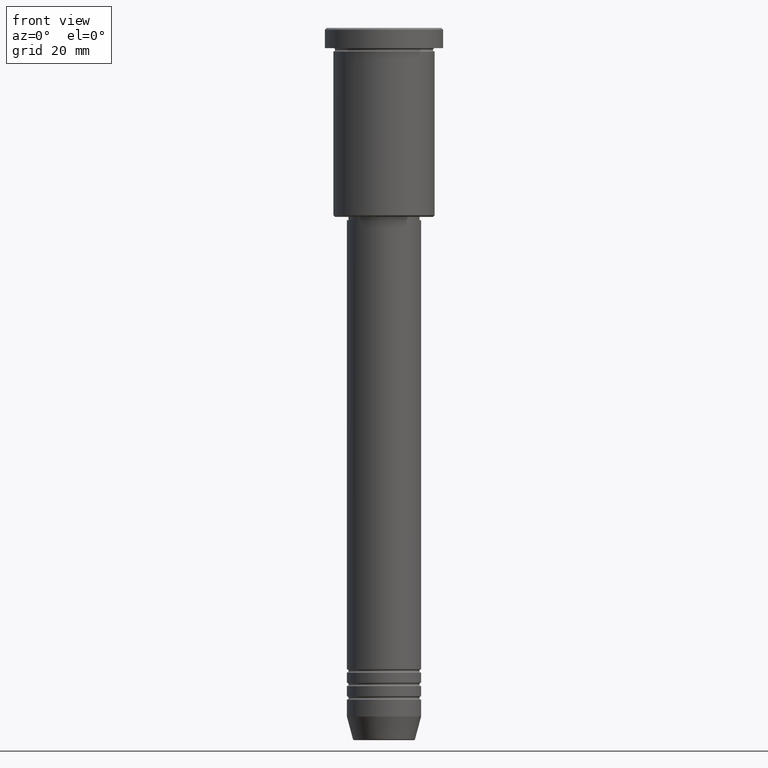
[diagram: clean part render]
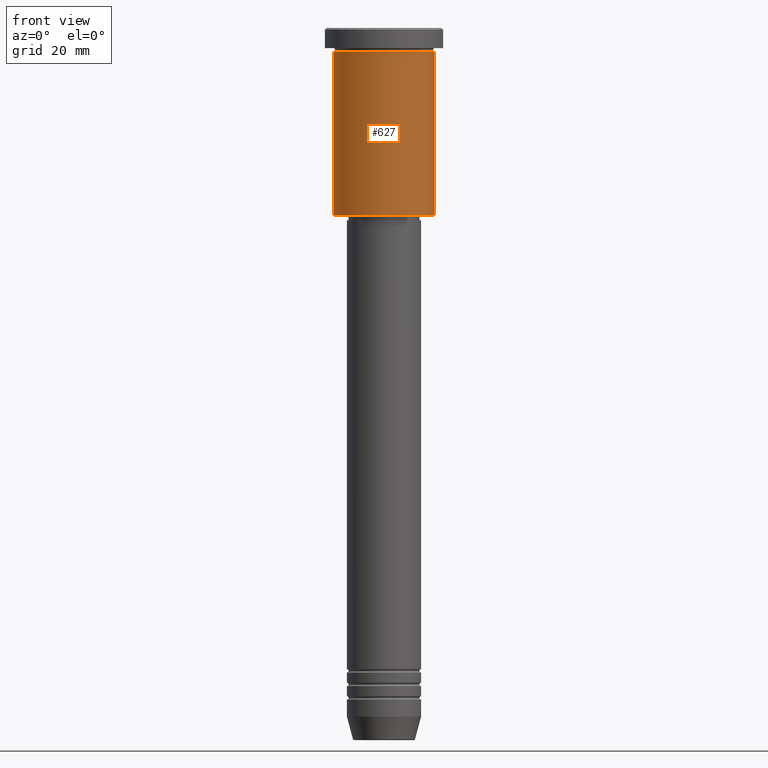
[diagram: same view with one face highlighted and labeled with its STEP entity id]
A machine part, front view. The second image highlights one B-rep face of the part: STEP entity #627.
In plain terms, the highlighted cylindrical surface (partial cylindrical patch) has radius 15 mm, axis along (-0, -0, 1).
Its self-contained STEP definition (entity closure, byte-faithful):
#28 = CYLINDRICAL_SURFACE ( 'NONE', #821, 15.00000000000000000 ) ;
#62 = AXIS2_PLACEMENT_3D ( 'NONE', #473, #200, #941 ) ;
#100 = DIRECTION ( 'NONE',  ( 1.000000000000000000, 0.000000000000000000, 0.000000000000000000 ) ) ;
#141 = CARTESIAN_POINT ( 'NONE',  ( 15.00000000000000000, 0.000000000000000000, -55.49999999999997868 ) ) ;
#154 = ORIENTED_EDGE ( 'NONE', *, *, #400, .T. ) ;
#189 = AXIS2_PLACEMENT_3D ( 'NONE', #525, #334, #1047 ) ;
#200 = DIRECTION ( 'NONE',  ( -0.000000000000000000, -0.000000000000000000, 1.000000000000000000 ) ) ;
#210 = LINE ( 'NONE', #1150, #1009 ) ;
#269 = ORIENTED_EDGE ( 'NONE', *, *, #741, .T. ) ;
#334 = DIRECTION ( 'NONE',  ( -0.000000000000000000, -0.000000000000000000, 1.000000000000000000 ) ) ;
#352 = VERTEX_POINT ( 'NONE', #141 ) ;
#358 = CIRCLE ( 'NONE', #62, 15.00000000000000000 ) ;
#400 = EDGE_CURVE ( 'NONE', #352, #782, #210, .T. ) ;
#420 = DIRECTION ( 'NONE',  ( -0.000000000000000000, -0.000000000000000000, 1.000000000000000000 ) ) ;
#451 = CARTESIAN_POINT ( 'NONE',  ( -15.00000000000000000, 1.836970198721029589E-15, 0.000000000000000000 ) ) ;
#473 = CARTESIAN_POINT ( 'NONE',  ( 0.000000000000000000, 0.000000000000000000, -6.999999999999995559 ) ) ;
#489 = VERTEX_POINT ( 'NONE', #912 ) ;
#519 = CARTESIAN_POINT ( 'NONE',  ( 15.00000000000000000, 0.000000000000000000, -6.999999999999995559 ) ) ;
#525 = CARTESIAN_POINT ( 'NONE',  ( 0.000000000000000000, 0.000000000000000000, -55.49999999999997868 ) ) ;
#610 = DIRECTION ( 'NONE',  ( -0.000000000000000000, -0.000000000000000000, 1.000000000000000000 ) ) ;
#627 = ADVANCED_FACE ( 'NONE', ( #760 ), #28, .T. ) ;
#647 = ORIENTED_EDGE ( 'NONE', *, *, #672, .F. ) ;
#665 = CARTESIAN_POINT ( 'NONE',  ( 0.000000000000000000, 0.000000000000000000, 0.000000000000000000 ) ) ;
#672 = EDGE_CURVE ( 'NONE', #943, #782, #358, .T. ) ;
#692 = CARTESIAN_POINT ( 'NONE',  ( -15.00000000000000000, 1.836970198721029589E-15, -6.999999999999995559 ) ) ;
#741 = EDGE_CURVE ( 'NONE', #489, #352, #825, .T. ) ;
#760 = FACE_OUTER_BOUND ( 'NONE', #899, .T. ) ;
#761 = ORIENTED_EDGE ( 'NONE', *, *, #920, .F. ) ;
#782 = VERTEX_POINT ( 'NONE', #519 ) ;
#821 = AXIS2_PLACEMENT_3D ( 'NONE', #665, #420, #100 ) ;
#825 = CIRCLE ( 'NONE', #189, 15.00000000000000000 ) ;
#899 = EDGE_LOOP ( 'NONE', ( #761, #269, #154, #647 ) ) ;
#912 = CARTESIAN_POINT ( 'NONE',  ( -15.00000000000000000, 1.836970198721029589E-15, -55.49999999999997868 ) ) ;
#920 = EDGE_CURVE ( 'NONE', #489, #943, #986, .T. ) ;
#922 = VECTOR ( 'NONE', #610, 1000.000000000000000 ) ;
#941 = DIRECTION ( 'NONE',  ( 1.000000000000000000, 0.000000000000000000, 0.000000000000000000 ) ) ;
#943 = VERTEX_POINT ( 'NONE', #692 ) ;
#986 = LINE ( 'NONE', #451, #922 ) ;
#1009 = VECTOR ( 'NONE', #1130, 1000.000000000000000 ) ;
#1047 = DIRECTION ( 'NONE',  ( -1.000000000000000000, 0.000000000000000000, 0.000000000000000000 ) ) ;
#1130 = DIRECTION ( 'NONE',  ( -0.000000000000000000, -0.000000000000000000, 1.000000000000000000 ) ) ;
#1150 = CARTESIAN_POINT ( 'NONE',  ( 15.00000000000000000, 0.000000000000000000, 0.000000000000000000 ) ) ;